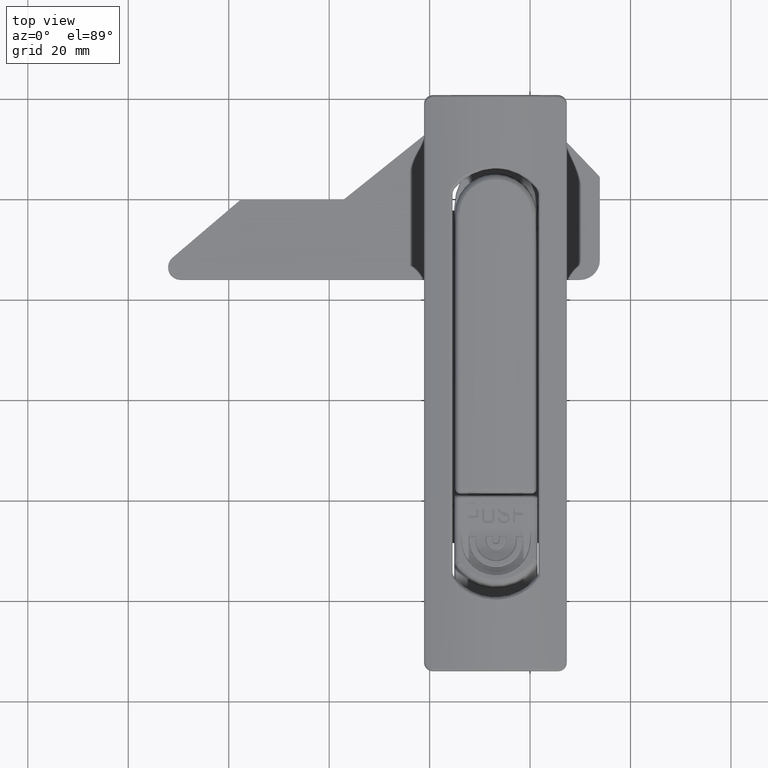
[diagram: clean part render]
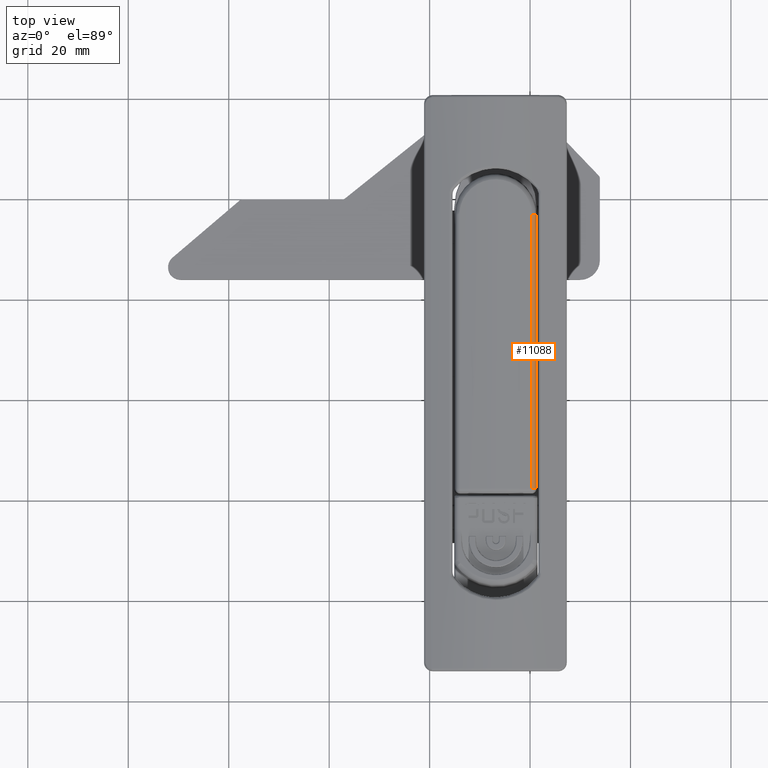
[diagram: same view with one face highlighted and labeled with its STEP entity id]
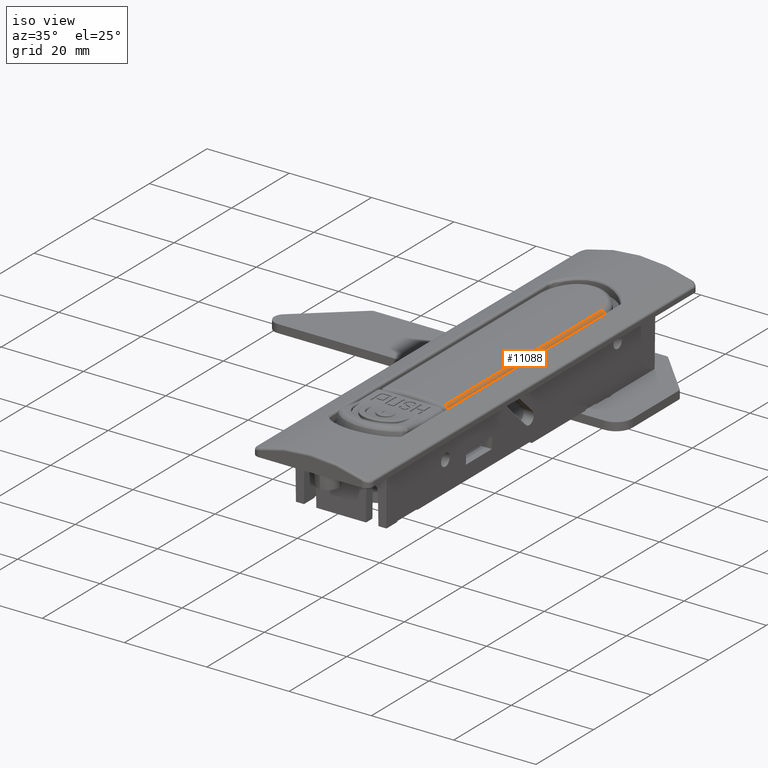
[diagram: same view with one face highlighted and labeled with its STEP entity id]
A machine part, top view. The second image highlights one B-rep face of the part: STEP entity #11088.
A second angle (iso view) of the same face is appended — the face is thin or edge-on in the first view.
In plain terms, the highlighted cylindrical surface (edge-blend (fillet) strip) has radius 1 mm, axis along (0, -1, 0).
Its self-contained STEP definition (entity closure, byte-faithful):
#698=CYLINDRICAL_SURFACE('',#12188,1.);
#1345=FACE_OUTER_BOUND('',#2059,.T.);
#2059=EDGE_LOOP('',(#9771,#9772,#9773,#9774));
#2554=CIRCLE('',#12160,1.);
#2573=CIRCLE('',#12189,1.);
#3416=LINE('',#22117,#4272);
#3417=LINE('',#22119,#4273);
#4272=VECTOR('',#15121,54.6617797140008);
#4273=VECTOR('',#15122,54.6617797140008);
#5258=VERTEX_POINT('',#21953);
#5259=VERTEX_POINT('',#21954);
#5286=VERTEX_POINT('',#22116);
#5287=VERTEX_POINT('',#22118);
#6770=EDGE_CURVE('',#5258,#5259,#2554,.T.);
#6807=EDGE_CURVE('',#5258,#5286,#3416,.T.);
#6808=EDGE_CURVE('',#5287,#5259,#3417,.T.);
#6809=EDGE_CURVE('',#5287,#5286,#2573,.T.);
#9771=ORIENTED_EDGE('',*,*,#6807,.F.);
#9772=ORIENTED_EDGE('',*,*,#6770,.T.);
#9773=ORIENTED_EDGE('',*,*,#6808,.F.);
#9774=ORIENTED_EDGE('',*,*,#6809,.T.);
#11088=ADVANCED_FACE('',(#1345),#698,.T.);
#12160=AXIS2_PLACEMENT_3D('',#21955,#15053,#15054);
#12188=AXIS2_PLACEMENT_3D('',#22115,#15119,#15120);
#12189=AXIS2_PLACEMENT_3D('',#22120,#15123,#15124);
#15053=DIRECTION('center_axis',(-1.,0.,0.));
#15054=DIRECTION('ref_axis',(0.,0.,-1.));
#15119=DIRECTION('center_axis',(1.,0.,0.));
#15120=DIRECTION('ref_axis',(0.,0.,-1.));
#15121=DIRECTION('',(-1.,0.,0.));
#15122=DIRECTION('',(1.,-4.8454784236933E-14,-5.41626193664636E-15));
#15123=DIRECTION('center_axis',(1.,-4.43744953121646E-14,2.2202964503685E-14));
#15124=DIRECTION('ref_axis',(4.43744953121646E-14,1.,6.08612540251957E-29));
#21953=CARTESIAN_POINT('',(117.995874386804,60.3200867414325,-1.10279380312144));
#21954=CARTESIAN_POINT('',(117.995874386804,61.1344110906974,-1.97546642342437));
#21955=CARTESIAN_POINT('Origin',(117.995874386804,60.1406005018347,-2.0865542870783));
#22115=CARTESIAN_POINT('Origin',(-16.4999999999995,60.1406005018347,-2.0865542870783));
#22116=CARTESIAN_POINT('',(63.3340946728032,60.3200867414131,-1.1027938031179));
#22117=CARTESIAN_POINT('',(-16.5,60.3200867414325,-1.10279380312144));
#22118=CARTESIAN_POINT('',(63.3340946728032,61.1344110906995,-1.97546642341857));
#22119=CARTESIAN_POINT('',(86.095874386782,61.134411090699,-1.97546642342419));
#22120=CARTESIAN_POINT('Origin',(63.3340946728032,60.1406005018158,-2.08655428707485));